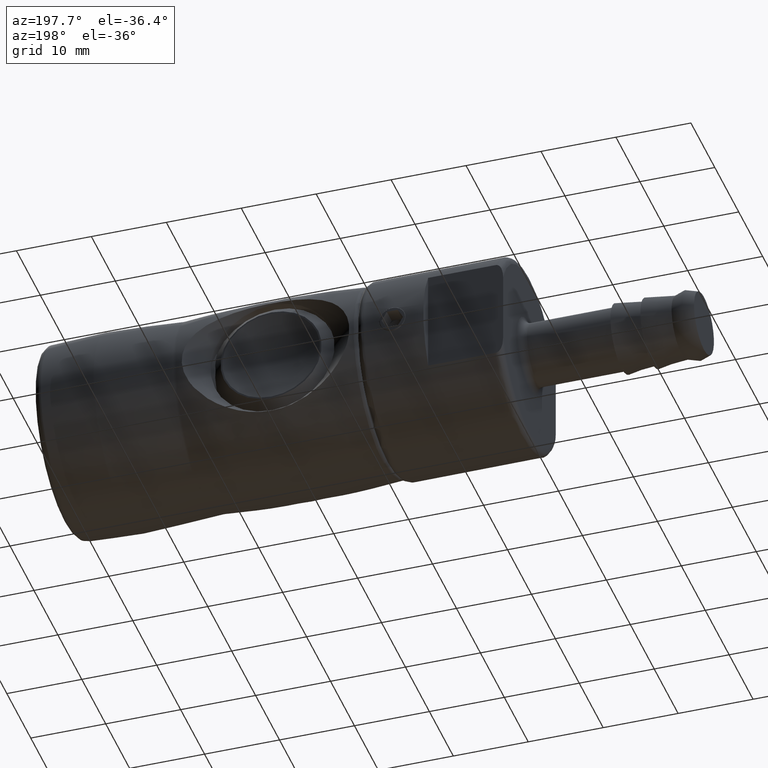
[diagram: clean part render]
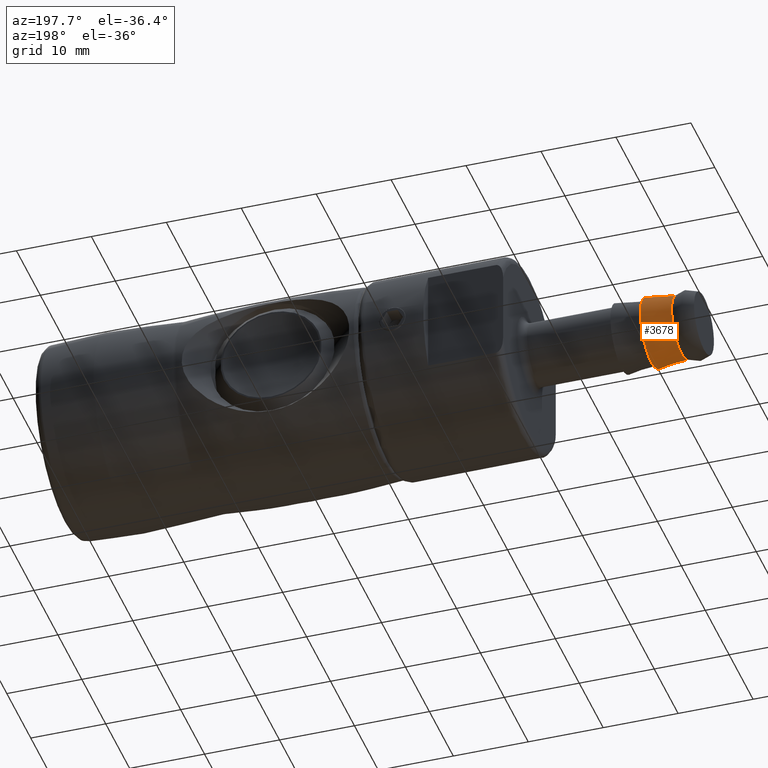
[diagram: same view with one face highlighted and labeled with its STEP entity id]
A machine part, auxiliary view. The second image highlights one B-rep face of the part: STEP entity #3678.
In plain terms, the highlighted conical surface has half-angle 7.125 deg.
Its self-contained STEP definition (entity closure, byte-faithful):
#221=CONICAL_SURFACE('',#4199,4.65000000000038,0.124354994546816);
#472=LINE('',#14563,#611);
#611=VECTOR('',#5263,4.65000000000038);
#928=FACE_OUTER_BOUND('',#1172,.T.);
#1172=EDGE_LOOP('',(#3390,#3391,#3392,#3393,#3394,#3395));
#1444=CIRCLE('',#4197,4.15000000000021);
#1445=CIRCLE('',#4198,4.15000000000021);
#1446=CIRCLE('',#4200,4.65000000000038);
#1447=CIRCLE('',#4201,4.65000000000038);
#1848=VERTEX_POINT('',#14554);
#1849=VERTEX_POINT('',#14556);
#1850=VERTEX_POINT('',#14560);
#1851=VERTEX_POINT('',#14561);
#2370=EDGE_CURVE('',#1848,#1849,#1444,.T.);
#2371=EDGE_CURVE('',#1849,#1848,#1445,.T.);
#2372=EDGE_CURVE('',#1850,#1851,#1446,.T.);
#2373=EDGE_CURVE('',#1851,#1849,#472,.T.);
#2374=EDGE_CURVE('',#1851,#1850,#1447,.T.);
#3390=ORIENTED_EDGE('',*,*,#2372,.T.);
#3391=ORIENTED_EDGE('',*,*,#2373,.T.);
#3392=ORIENTED_EDGE('',*,*,#2370,.F.);
#3393=ORIENTED_EDGE('',*,*,#2371,.F.);
#3394=ORIENTED_EDGE('',*,*,#2373,.F.);
#3395=ORIENTED_EDGE('',*,*,#2374,.T.);
#3678=ADVANCED_FACE('',(#928),#221,.T.);
#4197=AXIS2_PLACEMENT_3D('',#14557,#5255,#5256);
#4198=AXIS2_PLACEMENT_3D('',#14558,#5257,#5258);
#4199=AXIS2_PLACEMENT_3D('',#14559,#5259,#5260);
#4200=AXIS2_PLACEMENT_3D('',#14562,#5261,#5262);
#4201=AXIS2_PLACEMENT_3D('',#14564,#5264,#5265);
#5255=DIRECTION('center_axis',(-1.,-2.5879858961019E-18,-3.851206953318E-18));
#5256=DIRECTION('ref_axis',(3.851206953318E-18,-1.11022302462516E-16,-1.));
#5257=DIRECTION('center_axis',(-1.,-2.5879858961019E-18,-3.851206953318E-18));
#5258=DIRECTION('ref_axis',(3.851206953318E-18,-1.11022302462516E-16,-1.));
#5259=DIRECTION('center_axis',(1.,2.5879858961019E-18,3.851206953318E-18));
#5260=DIRECTION('ref_axis',(-3.851206953318E-18,1.11022302462516E-16,1.));
#5261=DIRECTION('center_axis',(-1.,-2.5879858961019E-18,-3.851206953318E-18));
#5262=DIRECTION('ref_axis',(3.851206953318E-18,-1.11022302462516E-16,-1.));
#5263=DIRECTION('',(-0.992277876713661,-3.98725340030513E-18,0.124034734589262));
#5264=DIRECTION('center_axis',(-1.,-2.5879858961019E-18,-3.851206953318E-18));
#5265=DIRECTION('ref_axis',(3.851206953318E-18,-1.11022302462516E-16,-1.));
#14554=CARTESIAN_POINT('',(-29.5999999999919,8.67263131148836E-16,4.15000000000021));
#14556=CARTESIAN_POINT('',(-29.5999999999919,-1.10129499256114E-15,-4.15000000000021));
#14557=CARTESIAN_POINT('Origin',(-29.5999999999919,-1.01707845716805E-16,
-3.03241321821176E-16));
#14558=CARTESIAN_POINT('Origin',(-29.5999999999919,-1.01707845716805E-16,
-3.03241321821176E-16));
#14559=CARTESIAN_POINT('Origin',(-25.5999999999923,-9.13559021323981E-17,
-2.87836494007905E-16));
#14560=CARTESIAN_POINT('',(-25.5999999999923,4.24897804318341E-16,4.65000000000038));
#14561=CARTESIAN_POINT('',(-25.5999999999923,-3.81488469795723E-17,-4.65000000000038));
#14562=CARTESIAN_POINT('Origin',(-25.5999999999923,-9.13559021323981E-17,
-2.87836494007905E-16));
#14563=CARTESIAN_POINT('',(-25.5999999999923,-3.81488469795723E-17,-4.65000000000038));
#14564=CARTESIAN_POINT('Origin',(-25.5999999999923,-9.13559021323981E-17,
-2.87836494007905E-16));